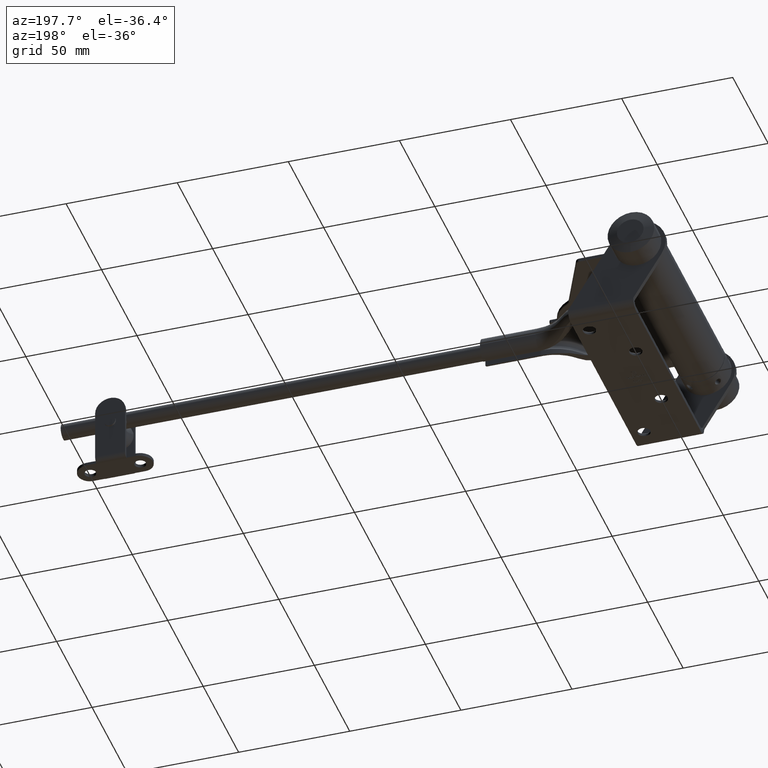
[diagram: clean part render]
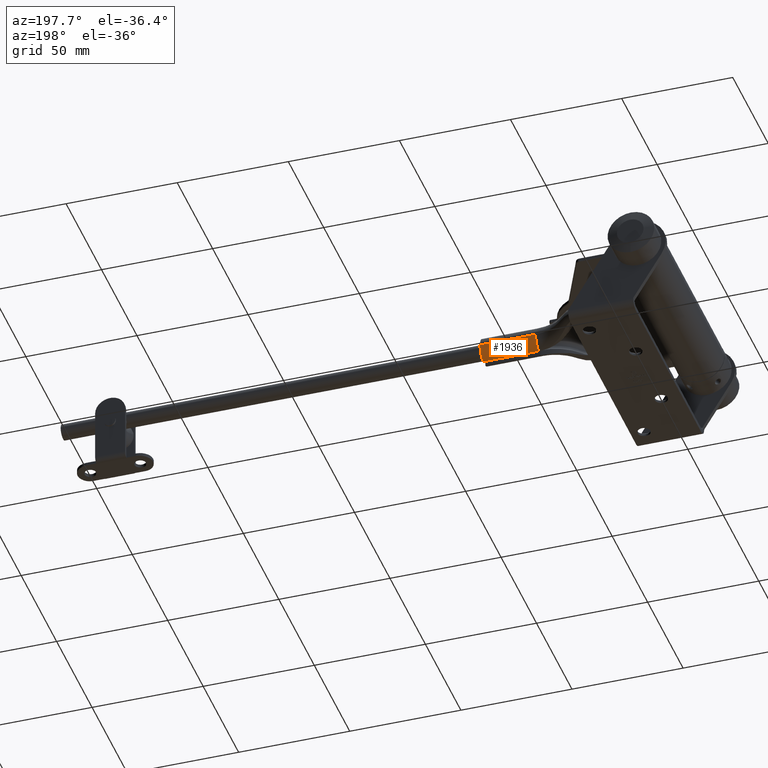
[diagram: same view with one face highlighted and labeled with its STEP entity id]
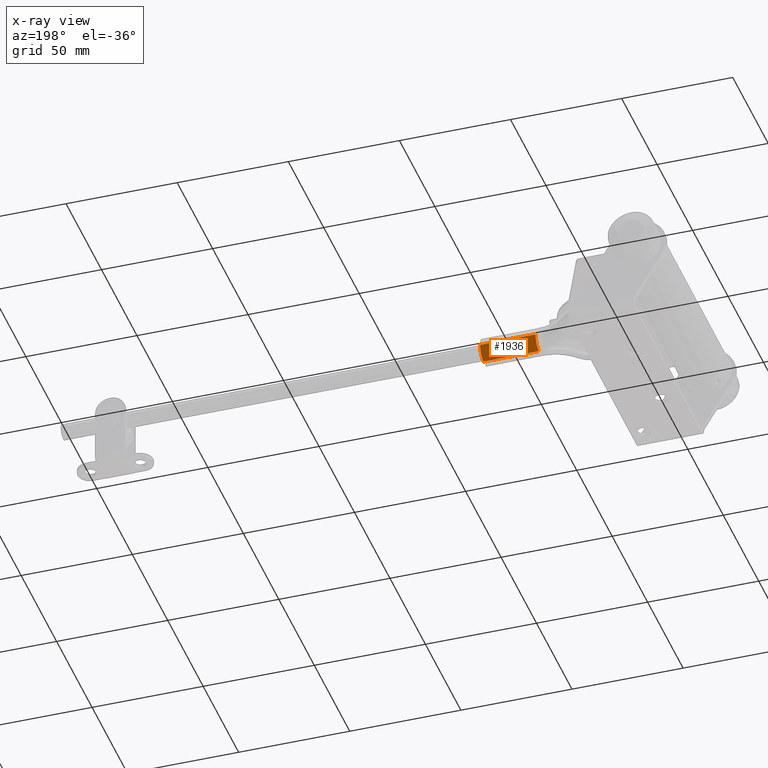
[diagram: x-ray of the same camera — body ghosted, the highlighted face saturated]
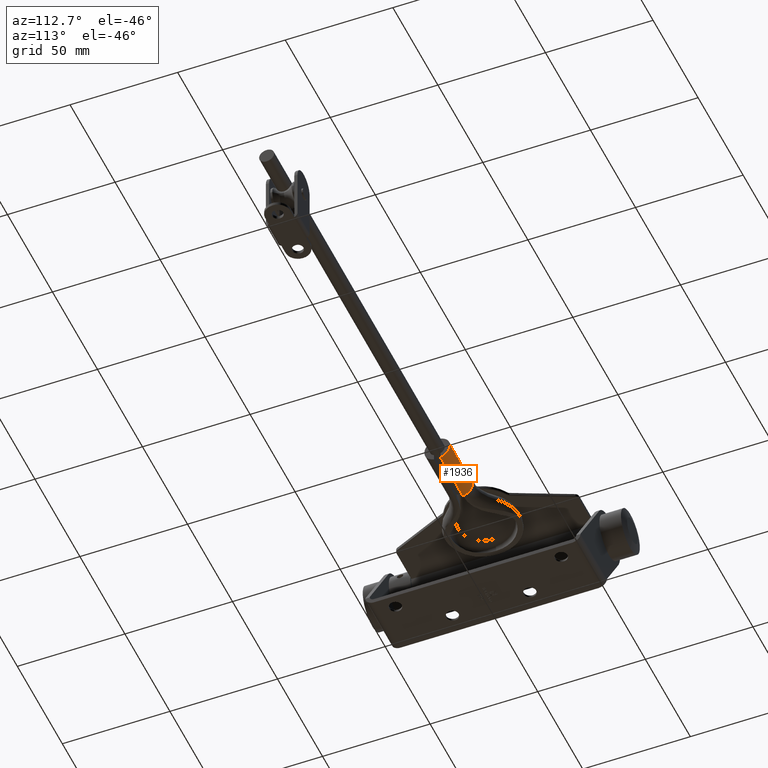
[diagram: same view with one face highlighted and labeled with its STEP entity id]
A machine part, auxiliary view. The second image highlights one B-rep face of the part: STEP entity #1936.
The next image is the same camera in x-ray: the body ghosted, the highlighted face saturated — about 0% of this face is hidden behind the body in this view.
A second angle (auxiliary view) of the same face is appended — the face is thin or edge-on in the first view.
In plain terms, the highlighted cylindrical surface (edge-blend (fillet) strip) has radius 6 mm, axis along (1, 0, 0).
Its self-contained STEP definition (entity closure, byte-faithful):
#555 = ORIENTED_EDGE ( 'NONE', *, *, #19357, .F. ) ;
#795 = FACE_OUTER_BOUND ( 'NONE', #9773, .T. ) ;
#1358 = CARTESIAN_POINT ( 'NONE',  ( 1.500000000000000444, -9.309475019311133082, 50.50000000000000000 ) ) ;
#1936 = ADVANCED_FACE ( 'NONE', ( #795 ), #9988, .T. ) ;
#1990 = EDGE_CURVE ( 'NONE', #6949, #26150, #11513, .T. ) ;
#1991 = DIRECTION ( 'NONE',  ( -1.000000000000000000, 0.000000000000000000, 0.000000000000000000 ) ) ;
#2544 = ORIENTED_EDGE ( 'NONE', *, *, #18620, .T. ) ;
#6597 = CIRCLE ( 'NONE', #17151, 6.000000000000007105 ) ;
#6742 = VECTOR ( 'NONE', #23179, 1000.000000000000000 ) ;
#6949 = VERTEX_POINT ( 'NONE', #17077 ) ;
#7050 = DIRECTION ( 'NONE',  ( 1.387778780781445676E-16, 0.000000000000000000, 1.000000000000000000 ) ) ;
#7218 = ORIENTED_EDGE ( 'NONE', *, *, #7953, .T. ) ;
#7953 = EDGE_CURVE ( 'NONE', #11315, #12973, #22880, .T. ) ;
#8824 = DIRECTION ( 'NONE',  ( 1.000000000000000000, 0.000000000000000000, 0.000000000000000000 ) ) ;
#9773 = EDGE_LOOP ( 'NONE', ( #7218, #555, #21345, #2544 ) ) ;
#9988 = CYLINDRICAL_SURFACE ( 'NONE', #13688, 6.000000000000007105 ) ;
#11315 = VERTEX_POINT ( 'NONE', #11972 ) ;
#11513 = LINE ( 'NONE', #12558, #25451 ) ;
#11972 = CARTESIAN_POINT ( 'NONE',  ( 5.999999999999998224, -3.500000000000000888, 25.49999999999999645 ) ) ;
#12487 = DIRECTION ( 'NONE',  ( -1.000000000000000000, 0.000000000000000000, 0.000000000000000000 ) ) ;
#12558 = CARTESIAN_POINT ( 'NONE',  ( 1.499999999999996891, -9.309475019311133082, 25.50000000000000355 ) ) ;
#12973 = VERTEX_POINT ( 'NONE', #15096 ) ;
#13193 = CARTESIAN_POINT ( 'NONE',  ( 6.000000000000003553, -3.500000000000000888, 25.50000000000000355 ) ) ;
#13688 = AXIS2_PLACEMENT_3D ( 'NONE', #24324, #20606, #8824 ) ;
#14262 = CARTESIAN_POINT ( 'NONE',  ( 1.214306433183764966E-14, -3.500000000000001332, 25.49999999999999645 ) ) ;
#15096 = CARTESIAN_POINT ( 'NONE',  ( 6.000000000000007105, -3.500000000000000888, 50.50000000000000000 ) ) ;
#17077 = CARTESIAN_POINT ( 'NONE',  ( 1.500000000000008216, -9.309475019311133082, 25.50000000000000711 ) ) ;
#17151 = AXIS2_PLACEMENT_3D ( 'NONE', #18550, #24932, #12487 ) ;
#18550 = CARTESIAN_POINT ( 'NONE',  ( 0.000000000000000000, -3.500000000000001332, 50.50000000000000000 ) ) ;
#18620 = EDGE_CURVE ( 'NONE', #6949, #11315, #20974, .T. ) ;
#19357 = EDGE_CURVE ( 'NONE', #26150, #12973, #6597, .T. ) ;
#20606 = DIRECTION ( 'NONE',  ( 1.387778780781445676E-16, 0.000000000000000000, 1.000000000000000000 ) ) ;
#20974 = CIRCLE ( 'NONE', #21715, 6.000000000000007105 ) ;
#21345 = ORIENTED_EDGE ( 'NONE', *, *, #1990, .F. ) ;
#21715 = AXIS2_PLACEMENT_3D ( 'NONE', #14262, #22140, #1991 ) ;
#22140 = DIRECTION ( 'NONE',  ( 0.000000000000000000, 0.000000000000000000, 1.000000000000000000 ) ) ;
#22880 = LINE ( 'NONE', #13193, #6742 ) ;
#23179 = DIRECTION ( 'NONE',  ( 1.387778780781445676E-16, 0.000000000000000000, 1.000000000000000000 ) ) ;
#24324 = CARTESIAN_POINT ( 'NONE',  ( -3.469446951953614189E-15, -3.500000000000001332, 25.50000000000000355 ) ) ;
#24932 = DIRECTION ( 'NONE',  ( 0.000000000000000000, 0.000000000000000000, 1.000000000000000000 ) ) ;
#25451 = VECTOR ( 'NONE', #7050, 1000.000000000000000 ) ;
#26150 = VERTEX_POINT ( 'NONE', #1358 ) ;